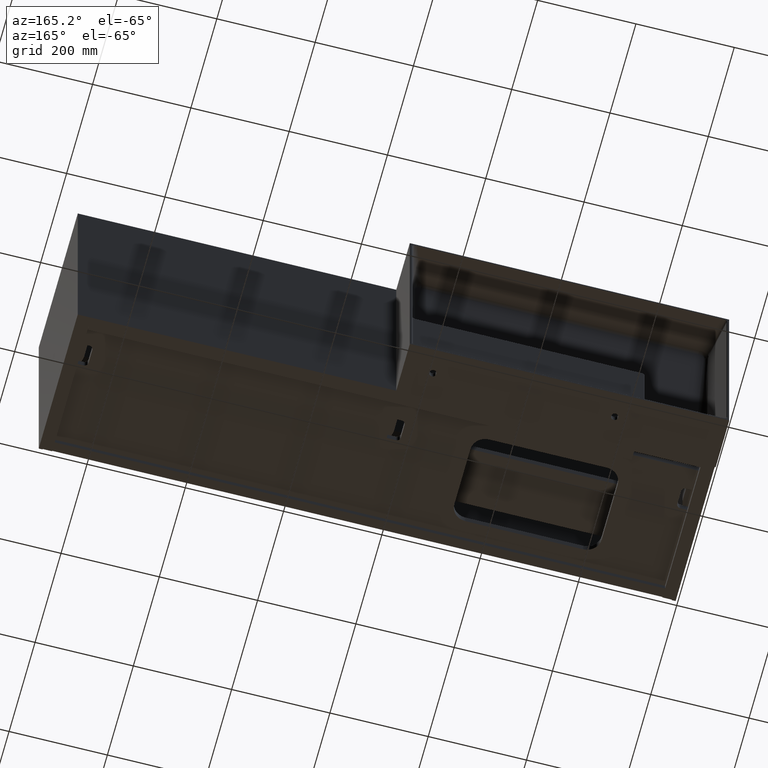
[diagram: clean part render]
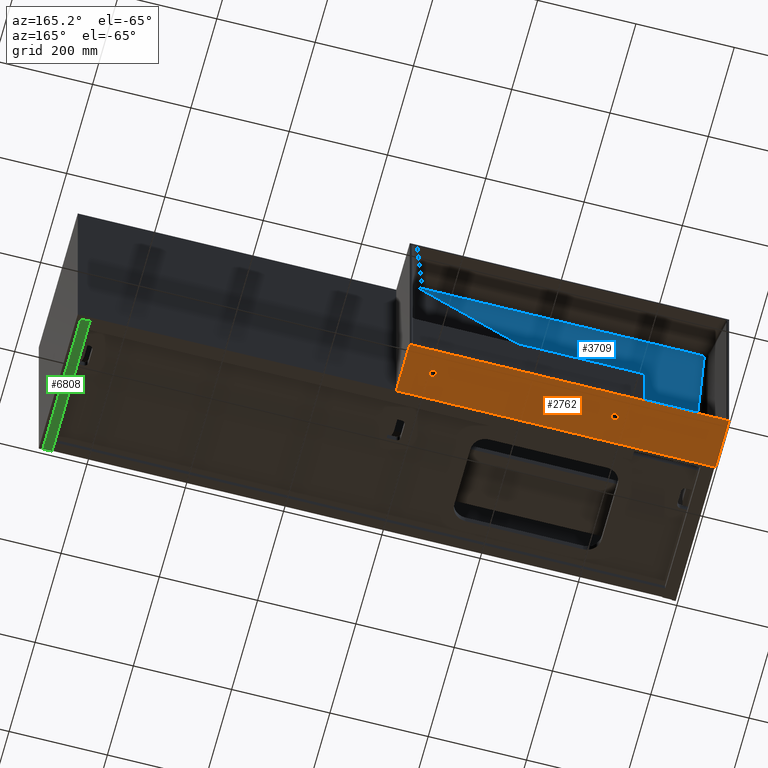
[diagram: same view with three faces highlighted in distinct colors, each labeled with its STEP entity id]
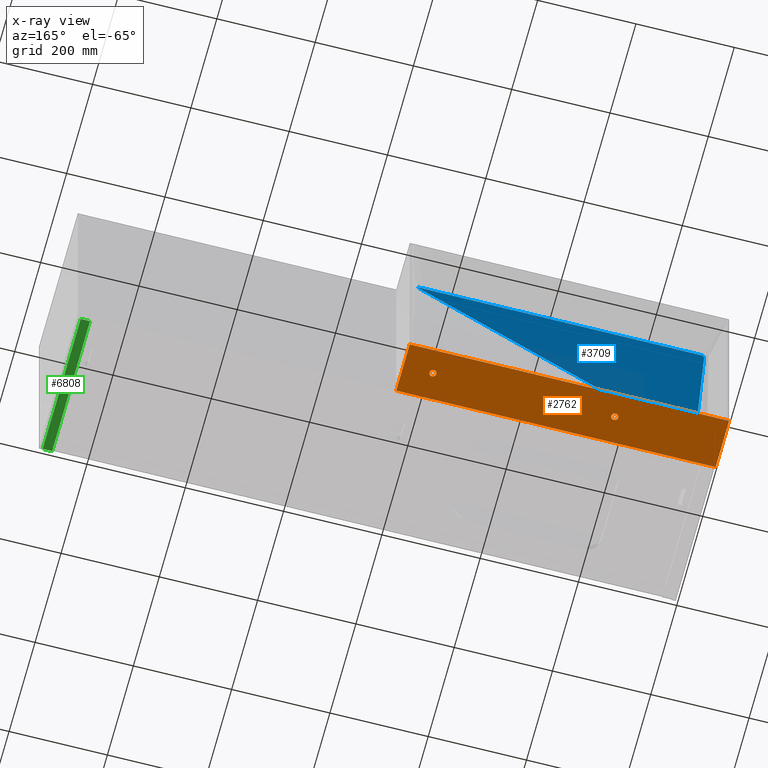
[diagram: x-ray of the same camera — body ghosted, the three highlighted faces saturated]
A machine part, auxiliary view with three faces highlighted in distinct colors.
The next image is the same camera in x-ray (body ghosted, the three faces saturated) — at least one of them is partly hidden behind the body in this view.
Their STEP definitions:

[orange] entity #2762 — the highlighted planar face has unit normal (0, 0, 1).
#271 = ORIENTED_EDGE ( 'NONE', *, *, #6829, .T. ) ;
#370 = VERTEX_POINT ( 'NONE', #12375 ) ;
#525 = CARTESIAN_POINT ( 'NONE',  ( 227.0000000000000284, 355.0000000000000568, -470.0000000000037517 ) ) ;
#697 = ORIENTED_EDGE ( 'NONE', *, *, #5405, .F. ) ;
#937 = DIRECTION ( 'NONE',  ( -1.000000000000000000, 0.0000000000000000000, 0.0000000000000000000 ) ) ;
#1280 = CIRCLE ( 'NONE', #10441, 7.000000000000006217 ) ;
#1524 = DIRECTION ( 'NONE',  ( 0.0000000000000000000, 0.0000000000000000000, -1.000000000000000000 ) ) ;
#1601 = CARTESIAN_POINT ( 'NONE',  ( 5.551115123125782702E-14, 300.0000000000000000, -470.0000000000037517 ) ) ;
#1631 = VERTEX_POINT ( 'NONE', #5678 ) ;
#1723 = CARTESIAN_POINT ( 'NONE',  ( 220.0000000000000284, 355.0000000000000568, -470.0000000000037517 ) ) ;
#1744 = CARTESIAN_POINT ( 'NONE',  ( 5.551115123125782702E-14, 404.9999999999999432, -470.0000000000037517 ) ) ;
#2352 = DIRECTION ( 'NONE',  ( 1.000000000000000000, -0.0000000000000000000, -0.0000000000000000000 ) ) ;
#2499 = CARTESIAN_POINT ( 'NONE',  ( 649.9999999999998863, 404.9999999999999432, -470.0000000000037517 ) ) ;
#2762 = ADVANCED_FACE ( 'NONE', ( #14158, #2975, #7990 ), #12944, .F. ) ;
#2788 = VERTEX_POINT ( 'NONE', #525 ) ;
#2943 = EDGE_CURVE ( 'NONE', #5999, #10272, #8592, .T. ) ;
#2975 = FACE_BOUND ( 'NONE', #6657, .T. ) ;
#3949 = CARTESIAN_POINT ( 'NONE',  ( 583.0000000000001137, 355.0000000000000568, -470.0000000000037517 ) ) ;
#4264 = CARTESIAN_POINT ( 'NONE',  ( 5.551115123125782702E-14, 403.9999999999999432, -470.0000000000037517 ) ) ;
#4393 = AXIS2_PLACEMENT_3D ( 'NONE', #1744, #6750, #11725 ) ;
#4500 = ORIENTED_EDGE ( 'NONE', *, *, #9471, .F. ) ;
#4640 = LINE ( 'NONE', #9655, #10582 ) ;
#5093 = VERTEX_POINT ( 'NONE', #14787 ) ;
#5405 = EDGE_CURVE ( 'NONE', #11023, #12957, #1280, .T. ) ;
#5474 = CARTESIAN_POINT ( 'NONE',  ( 220.0000000000000284, 355.0000000000000568, -470.0000000000037517 ) ) ;
#5678 = CARTESIAN_POINT ( 'NONE',  ( 5.551115123125782702E-14, 300.0000000000000000, -470.0000000000037517 ) ) ;
#5741 = VECTOR ( 'NONE', #7502, 1000.000000000000000 ) ;
#5785 = AXIS2_PLACEMENT_3D ( 'NONE', #1723, #6730, #11705 ) ;
#5999 = VERTEX_POINT ( 'NONE', #4264 ) ;
#6469 = EDGE_LOOP ( 'NONE', ( #14882, #10188, #271, #13599 ) ) ;
#6525 = DIRECTION ( 'NONE',  ( -1.000000000000000000, 0.0000000000000000000, 0.0000000000000000000 ) ) ;
#6605 = DIRECTION ( 'NONE',  ( -1.000000000000000000, -0.0000000000000000000, -0.0000000000000000000 ) ) ;
#6657 = EDGE_LOOP ( 'NONE', ( #10676, #4500 ) ) ;
#6730 = DIRECTION ( 'NONE',  ( 0.0000000000000000000, 0.0000000000000000000, -1.000000000000000000 ) ) ;
#6750 = DIRECTION ( 'NONE',  ( 0.0000000000000000000, 0.0000000000000000000, 1.000000000000000000 ) ) ;
#6829 = EDGE_CURVE ( 'NONE', #10272, #5093, #13703, .T. ) ;
#7151 = CARTESIAN_POINT ( 'NONE',  ( 590.0000000000001137, 355.0000000000000568, -470.0000000000037517 ) ) ;
#7502 = DIRECTION ( 'NONE',  ( -0.0000000000000000000, -1.000000000000000000, -0.0000000000000000000 ) ) ;
#7696 = AXIS2_PLACEMENT_3D ( 'NONE', #12726, #1524, #6525 ) ;
#7990 = FACE_OUTER_BOUND ( 'NONE', #6469, .T. ) ;
#8115 = EDGE_LOOP ( 'NONE', ( #15660, #697 ) ) ;
#8411 = AXIS2_PLACEMENT_3D ( 'NONE', #5474, #10472, #15427 ) ;
#8592 = LINE ( 'NONE', #13550, #15369 ) ;
#9471 = EDGE_CURVE ( 'NONE', #2788, #370, #12835, .T. ) ;
#9655 = CARTESIAN_POINT ( 'NONE',  ( 5.551115123125782702E-14, 404.9999999999999432, -470.0000000000037517 ) ) ;
#9720 = EDGE_CURVE ( 'NONE', #370, #2788, #15437, .T. ) ;
#10188 = ORIENTED_EDGE ( 'NONE', *, *, #2943, .T. ) ;
#10272 = VERTEX_POINT ( 'NONE', #16138 ) ;
#10441 = AXIS2_PLACEMENT_3D ( 'NONE', #7151, #12121, #937 ) ;
#10472 = DIRECTION ( 'NONE',  ( 0.0000000000000000000, 0.0000000000000000000, -1.000000000000000000 ) ) ;
#10582 = VECTOR ( 'NONE', #14596, 1000.000000000000000 ) ;
#10676 = ORIENTED_EDGE ( 'NONE', *, *, #9720, .F. ) ;
#11023 = VERTEX_POINT ( 'NONE', #13583 ) ;
#11705 = DIRECTION ( 'NONE',  ( -1.000000000000000000, 0.0000000000000000000, 0.0000000000000000000 ) ) ;
#11725 = DIRECTION ( 'NONE',  ( 1.000000000000000000, 0.0000000000000000000, -0.0000000000000000000 ) ) ;
#12121 = DIRECTION ( 'NONE',  ( 0.0000000000000000000, 0.0000000000000000000, -1.000000000000000000 ) ) ;
#12375 = CARTESIAN_POINT ( 'NONE',  ( 213.0000000000000284, 355.0000000000000568, -470.0000000000037517 ) ) ;
#12726 = CARTESIAN_POINT ( 'NONE',  ( 590.0000000000001137, 355.0000000000000568, -470.0000000000037517 ) ) ;
#12803 = LINE ( 'NONE', #1601, #13941 ) ;
#12835 = CIRCLE ( 'NONE', #5785, 7.000000000000006217 ) ;
#12944 = PLANE ( 'NONE',  #4393 ) ;
#12957 = VERTEX_POINT ( 'NONE', #3949 ) ;
#13408 = EDGE_CURVE ( 'NONE', #12957, #11023, #14709, .T. ) ;
#13481 = EDGE_CURVE ( 'NONE', #5093, #1631, #12803, .T. ) ;
#13550 = CARTESIAN_POINT ( 'NONE',  ( 5.551115123125782702E-14, 403.9999999999999432, -470.0000000000037517 ) ) ;
#13583 = CARTESIAN_POINT ( 'NONE',  ( 597.0000000000001137, 355.0000000000000568, -470.0000000000037517 ) ) ;
#13599 = ORIENTED_EDGE ( 'NONE', *, *, #13481, .T. ) ;
#13703 = LINE ( 'NONE', #2499, #5741 ) ;
#13941 = VECTOR ( 'NONE', #6605, 1000.000000000000000 ) ;
#14116 = EDGE_CURVE ( 'NONE', #5999, #1631, #4640, .T. ) ;
#14158 = FACE_BOUND ( 'NONE', #8115, .T. ) ;
#14596 = DIRECTION ( 'NONE',  ( -0.0000000000000000000, -1.000000000000000000, -0.0000000000000000000 ) ) ;
#14709 = CIRCLE ( 'NONE', #7696, 7.000000000000006217 ) ;
#14787 = CARTESIAN_POINT ( 'NONE',  ( 649.9999999999998863, 300.0000000000000000, -470.0000000000037517 ) ) ;
#14882 = ORIENTED_EDGE ( 'NONE', *, *, #14116, .F. ) ;
#15369 = VECTOR ( 'NONE', #2352, 1000.000000000000000 ) ;
#15427 = DIRECTION ( 'NONE',  ( -1.000000000000000000, 0.0000000000000000000, 0.0000000000000000000 ) ) ;
#15437 = CIRCLE ( 'NONE', #8411, 7.000000000000006217 ) ;
#15660 = ORIENTED_EDGE ( 'NONE', *, *, #13408, .F. ) ;
#16138 = CARTESIAN_POINT ( 'NONE',  ( 649.9999999999998863, 403.9999999999999432, -470.0000000000037517 ) ) ;

[blue] entity #3709 — the highlighted planar face has unit normal (0, 0.9989, -0.0471).
#28 = CARTESIAN_POINT ( 'NONE',  ( 33.47409499779467268, 329.6497692400749315, -32.53051000154606953 ) ) ;
#112 = CARTESIAN_POINT ( 'NONE',  ( 38.95957256948105396, 329.7210452700792871, -31.01753936451388327 ) ) ;
#166 = CARTESIAN_POINT ( 'NONE',  ( 193.7021115397278095, 316.7503751772958935, -306.3449249084059147 ) ) ;
#168 = CARTESIAN_POINT ( 'NONE',  ( 610.9881485329339057, 329.7211485507809243, -31.01534703324844955 ) ) ;
#195 = CARTESIAN_POINT ( 'NONE',  ( 153.3386852661366220, 315.7115601592879557, -328.3957689223072407 ) ) ;
#274 = AXIS2_PLACEMENT_3D ( 'NONE', #3890, #8896, #13847 ) ;
#400 = CARTESIAN_POINT ( 'NONE',  ( 151.9093494116073941, 315.4650869982647805, -333.6276351671397151 ) ) ;
#470 = CARTESIAN_POINT ( 'NONE',  ( 166.8388415159419083, 316.5339860282848008, -310.9382002157748843 ) ) ;
#482 = CARTESIAN_POINT ( 'NONE',  ( 60.94268838823946055, 314.9991196170648777, -343.5186878187569164 ) ) ;
#548 = CARTESIAN_POINT ( 'NONE',  ( 156.5240488746706546, 316.1005293085398762, -320.1391516346374146 ) ) ;
#568 = CARTESIAN_POINT ( 'NONE',  ( 60.90663676467716670, 314.9999518831746173, -343.5010213720403272 ) ) ;
#691 = DIRECTION ( 'NONE',  ( -1.000000000000000000, 0.0000000000000000000, 0.0000000000000000000 ) ) ;
#738 = ORIENTED_EDGE ( 'NONE', *, *, #1916, .T. ) ;
#743 = CARTESIAN_POINT ( 'NONE',  ( 136.1195970704763738, 314.9999859263438680, -343.5002987403862562 ) ) ;
#760 = CARTESIAN_POINT ( 'NONE',  ( 947.2733949437903220, 315.0000000000000000, -343.5000000000036948 ) ) ;
#801 = VERTEX_POINT ( 'NONE', #1301 ) ;
#829 = CARTESIAN_POINT ( 'NONE',  ( 136.0778652050269670, 314.9991196170648777, -343.5186878187569164 ) ) ;
#857 = ORIENTED_EDGE ( 'NONE', *, *, #13500, .T. ) ;
#987 = CARTESIAN_POINT ( 'NONE',  ( 136.1333824222509747, 315.0000000000000000, -343.5000000000036948 ) ) ;
#1160 = CARTESIAN_POINT ( 'NONE',  ( 31.46718212441213680, 329.3357435706770389, -39.19630798503847302 ) ) ;
#1241 = CARTESIAN_POINT ( 'NONE',  ( 32.93843571188597252, 329.6205960802619757, -33.14976635159989371 ) ) ;
#1301 = CARTESIAN_POINT ( 'NONE',  ( 199.3272960926469750, 316.8349497930412326, -304.5496662463578446 ) ) ;
#1323 = CARTESIAN_POINT ( 'NONE',  ( 37.06089926897184483, 329.7108201647723149, -31.23458686405955476 ) ) ;
#1347 = CARTESIAN_POINT ( 'NONE',  ( 65.01027679663329195, 315.0448930965660566, -342.5470577990144534 ) ) ;
#1365 = CARTESIAN_POINT ( 'NONE',  ( 614.5277192395964221, 329.6790194979284934, -31.90961709750361663 ) ) ;
#1373 = CARTESIAN_POINT ( 'NONE',  ( 195.8048643806832843, 316.7731144977071267, -305.8622391571570347 ) ) ;
#1376 = CARTESIAN_POINT ( 'NONE',  ( 610.9801094671161081, 329.7211740171513270, -31.01480646062488589 ) ) ;
#1401 = CARTESIAN_POINT ( 'NONE',  ( 41.44946198263794912, 329.7249613013299836, -30.93441407968062506 ) ) ;
#1459 = CARTESIAN_POINT ( 'NONE',  ( 614.5277192395964221, 329.6790194979284934, -31.90961709750361663 ) ) ;
#1565 = VERTEX_POINT ( 'NONE', #8479 ) ;
#1592 = CARTESIAN_POINT ( 'NONE',  ( 136.0778652050269670, 314.9991196170648777, -343.5186878187569164 ) ) ;
#1606 = CARTESIAN_POINT ( 'NONE',  ( 152.6018373482063168, 315.5696781237313076, -331.4074876404616816 ) ) ;
#1686 = CARTESIAN_POINT ( 'NONE',  ( 167.7033499628448681, 316.5512903870404671, -310.5708819646253005 ) ) ;
#1704 = ORIENTED_EDGE ( 'NONE', *, *, #11427, .T. ) ;
#1747 = ORIENTED_EDGE ( 'NONE', *, *, #13307, .T. ) ;
#1763 = CARTESIAN_POINT ( 'NONE',  ( 157.1944950747823100, 316.1510661865220868, -319.0664093330550486 ) ) ;
#1780 = CARTESIAN_POINT ( 'NONE',  ( 60.92751258604889131, 314.9997182540301424, -343.5059805993639657 ) ) ;
#1787 = VERTEX_POINT ( 'NONE', #195 ) ;
#1895 = VERTEX_POINT ( 'NONE', #3113 ) ;
#1916 = EDGE_CURVE ( 'NONE', #15447, #12259, #8356, .T. ) ;
#2016 = VERTEX_POINT ( 'NONE', #2531 ) ;
#2038 = CARTESIAN_POINT ( 'NONE',  ( 136.0789525232674464, 314.9992087463477333, -343.5167958785367546 ) ) ;
#2093 = DIRECTION ( 'NONE',  ( -0.8356163984689579660, 0.02584948056443482980, 0.5487048741940574459 ) ) ;
#2115 = DIRECTION ( 'NONE',  ( -0.8356163984689591873, -0.02584948056443473960, -0.5487048741940557806 ) ) ;
#2370 = CARTESIAN_POINT ( 'NONE',  ( 31.45480434768563427, 329.3101918600737008, -39.73869211988137806 ) ) ;
#2390 = ORIENTED_EDGE ( 'NONE', *, *, #3312, .T. ) ;
#2461 = CARTESIAN_POINT ( 'NONE',  ( 32.06997352171011073, 329.5429848699277500, -34.79721335914243241 ) ) ;
#2531 = CARTESIAN_POINT ( 'NONE',  ( 31.45806411650226053, 329.1756495435058127, -42.59461120506608012 ) ) ;
#2545 = CARTESIAN_POINT ( 'NONE',  ( 37.01503836490485355, 329.7104568430672202, -31.24229906508113430 ) ) ;
#2585 = CARTESIAN_POINT ( 'NONE',  ( 614.6864471200190110, 329.6858300883328070, -31.76504923504048961 ) ) ;
#2593 = CARTESIAN_POINT ( 'NONE',  ( 198.1148904920754035, 316.8069209751066637, -305.1446317421006142 ) ) ;
#2597 = CARTESIAN_POINT ( 'NONE',  ( 610.9020607668500134, 329.7214135855660970, -31.00972116087900332 ) ) ;
#2626 = CARTESIAN_POINT ( 'NONE',  ( 39.85010461055465925, 329.7232117706648182, -30.97155122837912344 ) ) ;
#2676 = CARTESIAN_POINT ( 'NONE',  ( 178.2644837121265766, 316.6443237527140582, -308.5960700885902384 ) ) ;
#2703 = CARTESIAN_POINT ( 'NONE',  ( 31.45806411650226053, 329.1756495435058127, -42.59461120506608012 ) ) ;
#2832 = CARTESIAN_POINT ( 'NONE',  ( 153.3386852661366220, 315.7115601592879557, -328.3957689223072407 ) ) ;
#2908 = CARTESIAN_POINT ( 'NONE',  ( 172.6972624792437330, 316.6167240759052106, -309.1819262396892896 ) ) ;
#2913 = CARTESIAN_POINT ( 'NONE',  ( 150.2991523776126712, 315.3203450831405235, -336.7000603221023880 ) ) ;
#2957 = CARTESIAN_POINT ( 'NONE',  ( 149.9914699862140424, 315.3087644759445425, -336.9458809527590120 ) ) ;
#2995 = CARTESIAN_POINT ( 'NONE',  ( 160.5572078355071994, 316.3373967013740184, -315.1111862694636443 ) ) ;
#3016 = CARTESIAN_POINT ( 'NONE',  ( 60.93713938520778584, 314.9994480009252129, -343.5117172405922474 ) ) ;
#3057 = EDGE_LOOP ( 'NONE', ( #15726, #10325, #8371, #9491, #2390, #7797, #15145, #6490, #6241, #15066, #8626, #1704, #1747, #12537, #5336, #857, #5330, #738 ) ) ;
#3113 = CARTESIAN_POINT ( 'NONE',  ( 132.0102767966331783, 315.0448930965660566, -342.5470577990145102 ) ) ;
#3280 = CARTESIAN_POINT ( 'NONE',  ( 136.0843081215926702, 314.9994828154415814, -343.5109782356149708 ) ) ;
#3312 = EDGE_CURVE ( 'NONE', #4070, #11586, #10501, .T. ) ;
#3339 = CARTESIAN_POINT ( 'NONE',  ( 607.2514038758654351, 329.7249613011944689, -30.93441408255420555 ) ) ;
#3604 = CARTESIAN_POINT ( 'NONE',  ( 31.45352180081113147, 329.3073872791450754, -39.79822473686244422 ) ) ;
#3690 = CARTESIAN_POINT ( 'NONE',  ( 31.65792970682448271, 329.4418998912123584, -36.94293618675494884 ) ) ;
#3709 = ADVANCED_FACE ( 'NONE', ( #10121 ), #15074, .T. ) ;
#3740 = B_SPLINE_CURVE_WITH_KNOTS ( 'NONE', 3,
 ( #6066, #11059, #16016, #4837, #9853, #14796, #3604, #8610, #13570, #2370, #7380, #12351, #1160, #6153, #11144, #16092, #4911, #9926, #14876, #3690, #8701, #13658, #2461, #7470, #12439, #1241, #6236, #11223, #28, #4997, #10011, #14968, #3782, #8790, #13743, #2545, #7546, #12519, #1323, #6321, #11308, #112, #5089, #10097, #15050, #3863, #8869, #13817, #2626, #7630, #12599, #1401, #6408 ),
 .UNSPECIFIED., .F., .F.,
 ( 4, 1, 1, 1, 1, 1, 1, 1, 2, 2, 1, 1, 1, 1, 1, 2, 2, 1, 1, 1, 2, 2, 1, 1, 1, 1, 1, 1, 1, 2, 2, 1, 1, 1, 1, 1, 1, 1, 2, 2, 4 ),
 ( 0.0000000000000000000, 0.06249999999990177302, 0.09374999999985265953, 0.1093749999998281097, 0.1171874999998152311, 0.1210937499998094302, 0.1230468749998067796, 0.1240234374998054612, 0.1245117187498054750, 0.1249999999998055167, 0.1874999999998187838, 0.2187499999998252509, 0.2343749999998286648, 0.2421874999998305245, 0.2460937499998309408, 0.2480468749998311073, 0.2499999999998312461, 0.3749999999998253064, 0.4374999999998233080, 0.4687499999998223643, 0.4843749999998218092, 0.4999999999998213651, 0.6249999999998214761, 0.6874999999998213651, 0.7187499999998212541, 0.7343749999998209210, 0.7421874999998213651, 0.7460937499998219202, 0.7480468749998228084, 0.7490234374998235856, 0.7499999999998243627, 0.8124999999998844258, 0.8437499999999145128, 0.8593749999999295008, 0.8671874999999369393, 0.8710937499999407141, 0.8730468749999429345, 0.8740234374999440448, 0.8745117187499445999, 0.8749999999999451550, 1.000000000000000000 ),
 .UNSPECIFIED. ) ;
#3774 = VECTOR ( 'NONE', #6346, 1000.000000000000000 ) ;
#3782 = CARTESIAN_POINT ( 'NONE',  ( 36.65727016811580796, 329.7074284779456548, -31.30658193138358669 ) ) ;
#3833 = CARTESIAN_POINT ( 'NONE',  ( 199.0965661181188580, 316.8278122476280032, -304.7011743568715474 ) ) ;
#3837 = CARTESIAN_POINT ( 'NONE',  ( 610.1935001160478578, 329.7230900881705224, -30.97413417303484096 ) ) ;
#3863 = CARTESIAN_POINT ( 'NONE',  ( 39.80055001793400749, 329.7231184733857390, -30.97353164232419331 ) ) ;
#3869 = CARTESIAN_POINT ( 'NONE',  ( 65.01027679663329195, 315.0448930965660566, -342.5470577990144534 ) ) ;
#3890 = CARTESIAN_POINT ( 'NONE',  ( 947.2733949437903220, 315.0000000000000000, -343.5000000000036948 ) ) ;
#3911 = CARTESIAN_POINT ( 'NONE',  ( 187.8723330342562292, 316.7024201626882700, -307.3628622008610591 ) ) ;
#3941 = CARTESIAN_POINT ( 'NONE',  ( 43.46481122973927569, 315.8787817905590032, -324.8461686152393213 ) ) ;
#4070 = VERTEX_POINT ( 'NONE', #3869 ) ;
#4153 = CARTESIAN_POINT ( 'NONE',  ( 150.9887181297819154, 315.3646822769986784, -335.7589182238220360 ) ) ;
#4217 = VERTEX_POINT ( 'NONE', #4743 ) ;
#4231 = CARTESIAN_POINT ( 'NONE',  ( 161.2636818977418329, 316.3676109992984493, -314.4698297632776871 ) ) ;
#4252 = CARTESIAN_POINT ( 'NONE',  ( 60.94268838823946055, 314.9991196170648777, -343.5186878187569164 ) ) ;
#4310 = CARTESIAN_POINT ( 'NONE',  ( 153.3386852661366220, 315.7115601592879557, -328.3957689223072407 ) ) ;
#4505 = CARTESIAN_POINT ( 'NONE',  ( 136.0926246450356984, 314.9997099876720767, -343.5061560686908706 ) ) ;
#4574 = CARTESIAN_POINT ( 'NONE',  ( 604.9648938005113905, 329.7249613011944689, -30.93441408255420555 ) ) ;
#4653 = VERTEX_POINT ( 'NONE', #1592 ) ;
#4654 = B_SPLINE_CURVE_WITH_KNOTS ( 'NONE', 3,
 ( #5058, #10072, #15026, #3837, #8844, #13790, #2597, #7602, #12573, #1376, #6380, #11373, #168, #5144, #10147, #15100 ),
 .UNSPECIFIED., .F., .F.,
 ( 4, 1, 1, 1, 1, 1, 1, 1, 1, 2, 2, 4 ),
 ( 0.0000000000000000000, 0.2499999999947719598, 0.3749999999921356797, 0.4374999999908175119, 0.4687499999901583725, 0.4843749999898610548, 0.4921874999897125069, 0.4960937499896722058, 0.4980468749896863057, 0.4990234374897277170, 0.4999999999897691838, 1.000000000000000000 ),
 .UNSPECIFIED. ) ;
#4743 = CARTESIAN_POINT ( 'NONE',  ( 42.74859612466869407, 329.7249613011944689, -30.93441408255406699 ) ) ;
#4757 = DIRECTION ( 'NONE',  ( -0.8356163984689591873, -0.02584948056443473960, -0.5487048741940557806 ) ) ;
#4798 = CARTESIAN_POINT ( 'NONE',  ( 63.59036508422332190, 315.0448930965660566, -342.5470577990144534 ) ) ;
#4837 = CARTESIAN_POINT ( 'NONE',  ( 31.44591276394434587, 329.2815417044280935, -40.34684670194455691 ) ) ;
#4851 = CARTESIAN_POINT ( 'NONE',  ( 133.4301885090430915, 315.0448930965660566, -342.5470577990143966 ) ) ;
#4911 = CARTESIAN_POINT ( 'NONE',  ( 31.63728168368350779, 329.4346731892463254, -37.09633681633806646 ) ) ;
#4997 = CARTESIAN_POINT ( 'NONE',  ( 34.24124650120866420, 329.6743000383533513, -32.00979669167229247 ) ) ;
#5058 = CARTESIAN_POINT ( 'NONE',  ( 607.2514038758654351, 329.7249613011944689, -30.93441408255420555 ) ) ;
#5089 = CARTESIAN_POINT ( 'NONE',  ( 39.40191773380524864, 329.7222547075044190, -30.99186673219122312 ) ) ;
#5141 = CARTESIAN_POINT ( 'NONE',  ( 192.1184905281108115, 316.7354091234109319, -306.6626081474803414 ) ) ;
#5144 = CARTESIAN_POINT ( 'NONE',  ( 612.4860492557529597, 329.7163766206675746, -31.11664041537338932 ) ) ;
#5166 = CARTESIAN_POINT ( 'NONE',  ( 140.0102767966332351, 315.0000000000000000, -343.5000000000036380 ) ) ;
#5330 = ORIENTED_EDGE ( 'NONE', *, *, #14301, .T. ) ;
#5336 = ORIENTED_EDGE ( 'NONE', *, *, #15982, .T. ) ;
#5382 = CARTESIAN_POINT ( 'NONE',  ( 151.6379731480173518, 315.4309747735021006, -334.3517326572305706 ) ) ;
#5452 = CARTESIAN_POINT ( 'NONE',  ( 165.5328698598231654, 316.5060946015510126, -311.5302493193883606 ) ) ;
#5487 = B_SPLINE_CURVE_WITH_KNOTS ( 'NONE', 3,
 ( #14103, #2908, #7924, #12884, #1686, #6698, #11672, #470, #5452, #10449, #15406, #4231, #9236, #14179, #2995, #8008, #12961, #1763, #6769, #11745, #548, #5538, #10532, #15486, #4310 ),
 .UNSPECIFIED., .F., .F.,
 ( 4, 1, 1, 1, 2, 2, 1, 1, 1, 2, 2, 1, 2, 2, 1, 1, 4 ),
 ( 0.0000000000000000000, 0.1249999999999944489, 0.1874999999999909239, 0.2187499999999904521, 0.2343749999999902300, 0.2499999999999900080, 0.3749999999999945599, 0.4374999999999941713, 0.4687499999999923395, 0.4843749999999895084, 0.4999999999999866773, 0.6249999999999777955, 0.6874999999999755751, 0.7031249999999754641, 0.7187499999999752420, 0.7499999999999747979, 1.000000000000000000 ),
 .UNSPECIFIED. ) ;
#5538 = CARTESIAN_POINT ( 'NONE',  ( 156.2948952270304801, 316.0823271635744049, -320.5255271224711464 ) ) ;
#5558 = CARTESIAN_POINT ( 'NONE',  ( 60.90018315897712142, 314.9999873542471960, -343.5002684303938167 ) ) ;
#5734 = CARTESIAN_POINT ( 'NONE',  ( 136.1127695007438092, 314.9999453202847803, -343.5011606819819008 ) ) ;
#5753 = DIRECTION ( 'NONE',  ( -1.000000000000000000, 0.0000000000000000000, 0.0000000000000000000 ) ) ;
#5799 = CARTESIAN_POINT ( 'NONE',  ( 42.74859612466869407, 329.7249613011944689, -30.93441408255406699 ) ) ;
#5814 = CARTESIAN_POINT ( 'NONE',  ( 614.7307329588622906, 329.6904979936178961, -31.66596397969709287 ) ) ;
#5836 = VECTOR ( 'NONE', #4757, 1000.000000000000114 ) ;
#5858 = VECTOR ( 'NONE', #2115, 1000.000000000000114 ) ;
#6066 = CARTESIAN_POINT ( 'NONE',  ( 31.45806411650226053, 329.1756495435058127, -42.59461120506608012 ) ) ;
#6153 = CARTESIAN_POINT ( 'NONE',  ( 31.50210393800605857, 329.3711174868012108, -38.44542867246135387 ) ) ;
#6236 = CARTESIAN_POINT ( 'NONE',  ( 33.02323264398262381, 329.6256754766356494, -33.04194640754992918 ) ) ;
#6241 = ORIENTED_EDGE ( 'NONE', *, *, #8649, .T. ) ;
#6321 = CARTESIAN_POINT ( 'NONE',  ( 37.46782869017114592, 329.7140127720062992, -31.16681764346372674 ) ) ;
#6346 = DIRECTION ( 'NONE',  ( -1.000000000000000000, 9.757946722184971901E-18, 2.071311613106639097E-16 ) ) ;
#6376 = CARTESIAN_POINT ( 'NONE',  ( 195.2801291537134887, 316.7670150134594564, -305.9917124256194825 ) ) ;
#6380 = CARTESIAN_POINT ( 'NONE',  ( 610.9848112725184137, 329.7211591309977052, -31.01512244782692562 ) ) ;
#6403 = CARTESIAN_POINT ( 'NONE',  ( 43.58903264293878266, 315.4151811651100843, -334.6869823302048417 ) ) ;
#6408 = CARTESIAN_POINT ( 'NONE',  ( 42.74859612466869407, 329.7249613011944689, -30.93441408255406699 ) ) ;
#6452 = B_SPLINE_CURVE_WITH_KNOTS ( 'NONE', 3,
 ( #2832, #7846, #12808, #1606, #6612, #11594, #400, #5382, #10381, #15332, #4153, #9159, #14109, #2913, #7930, #12890 ),
 .UNSPECIFIED., .F., .F.,
 ( 4, 2, 2, 2, 2, 2, 2, 4 ),
 ( 0.0000000000000000000, 0.002327619205670144499, 0.004655238411340288998, 0.005819048014175373824, 0.006982857617010459518, 0.008146667219845542610, 0.008728572021263016067, 0.009310476822680489525 ),
 .UNSPECIFIED. ) ;
#6490 = ORIENTED_EDGE ( 'NONE', *, *, #14096, .T. ) ;
#6612 = CARTESIAN_POINT ( 'NONE',  ( 152.3914831439639670, 315.5344834360791424, -332.1545624844790154 ) ) ;
#6698 = CARTESIAN_POINT ( 'NONE',  ( 167.2690301863730724, 316.5427596381475723, -310.7519634949263718 ) ) ;
#6769 = CARTESIAN_POINT ( 'NONE',  ( 156.7658629624832543, 316.1191833721571811, -319.7431833054165509 ) ) ;
#6787 = CARTESIAN_POINT ( 'NONE',  ( 60.92090942391381958, 314.9998476346298730, -343.5032342476329745 ) ) ;
#6912 = LINE ( 'NONE', #11882, #14172 ) ;
#6969 = CARTESIAN_POINT ( 'NONE',  ( 136.1333824222509747, 315.0000000000000000, -343.5000000000036948 ) ) ;
#7044 = CARTESIAN_POINT ( 'NONE',  ( 136.0785585320843438, 314.9991799397764112, -343.5174073533425485 ) ) ;
#7380 = CARTESIAN_POINT ( 'NONE',  ( 31.45491453958063133, 329.3104221738174147, -39.73380326830408649 ) ) ;
#7470 = CARTESIAN_POINT ( 'NONE',  ( 32.54148105634145338, 329.5921791447717055, -33.75297038791546100 ) ) ;
#7546 = CARTESIAN_POINT ( 'NONE',  ( 37.03734899239336897, 329.7106341431926921, -31.23853552938001243 ) ) ;
#7590 = CARTESIAN_POINT ( 'NONE',  ( 614.6151535243388935, 329.6820198651378178, -31.84592854066736223 ) ) ;
#7597 = CARTESIAN_POINT ( 'NONE',  ( 197.3579698442219978, 316.7939460989400118, -305.4200484096402306 ) ) ;
#7602 = CARTESIAN_POINT ( 'NONE',  ( 610.9469463202290171, 329.7212775058078478, -31.01260971512106579 ) ) ;
#7630 = CARTESIAN_POINT ( 'NONE',  ( 39.85592793073852391, 329.7232225338041758, -30.97132276007133456 ) ) ;
#7685 = CARTESIAN_POINT ( 'NONE',  ( 176.1234516139296886, 316.6333546551160794, -308.8289102535058532 ) ) ;
#7797 = ORIENTED_EDGE ( 'NONE', *, *, #9736, .T. ) ;
#7846 = CARTESIAN_POINT ( 'NONE',  ( 153.1702101777404437, 315.6758977246931863, -329.1527725935813464 ) ) ;
#7924 = CARTESIAN_POINT ( 'NONE',  ( 170.8233128626984012, 316.6005407954646671, -309.5254474503406641 ) ) ;
#7930 = CARTESIAN_POINT ( 'NONE',  ( 150.1562415174113028, 315.3138616215978800, -336.8376842461577212 ) ) ;
#8008 = CARTESIAN_POINT ( 'NONE',  ( 159.5328454346341971, 316.2914215586545765, -316.0870969783485975 ) ) ;
#8027 = CARTESIAN_POINT ( 'NONE',  ( 60.93431185951090612, 314.9995629513521749, -343.5092771969937644 ) ) ;
#8131 = EDGE_CURVE ( 'NONE', #4653, #1895, #10497, .T. ) ;
#8282 = CARTESIAN_POINT ( 'NONE',  ( 136.0822418297967715, 314.9994056883926987, -343.5126154053662049 ) ) ;
#8334 = LINE ( 'NONE', #13297, #8487 ) ;
#8356 = LINE ( 'NONE', #13320, #5858 ) ;
#8371 = ORIENTED_EDGE ( 'NONE', *, *, #8131, .T. ) ;
#8479 = CARTESIAN_POINT ( 'NONE',  ( 173.9812721945681062, 316.6229568114036965, -309.0496244574906086 ) ) ;
#8487 = VECTOR ( 'NONE', #2093, 1000.000000000000114 ) ;
#8610 = CARTESIAN_POINT ( 'NONE',  ( 31.45426059541438235, 329.3090328919622038, -39.76329344408150490 ) ) ;
#8626 = ORIENTED_EDGE ( 'NONE', *, *, #8842, .T. ) ;
#8649 = EDGE_CURVE ( 'NONE', #10856, #2016, #14464, .T. ) ;
#8701 = CARTESIAN_POINT ( 'NONE',  ( 31.65942971531341499, 329.4424095261252887, -36.93211820686678948 ) ) ;
#8790 = CARTESIAN_POINT ( 'NONE',  ( 36.86019171625576263, 329.7091892495750471, -31.26920617162613780 ) ) ;
#8829 = CARTESIAN_POINT ( 'NONE',  ( 614.7307329588622906, 329.6904979936178961, -31.66596397969709287 ) ) ;
#8841 = CARTESIAN_POINT ( 'NONE',  ( 198.8552613548531269, 316.8220531439237106, -304.8234223945301551 ) ) ;
#8842 = EDGE_CURVE ( 'NONE', #4217, #13241, #9247, .T. ) ;
#8844 = CARTESIAN_POINT ( 'NONE',  ( 610.6167148658778387, 329.7221843413141187, -30.99336038973546437 ) ) ;
#8869 = CARTESIAN_POINT ( 'NONE',  ( 39.82943733342002446, 329.7231732248104663, -30.97236943816988841 ) ) ;
#8896 = DIRECTION ( 'NONE',  ( 0.0000000000000000000, 0.9988921681304054889, -0.04705779901076869581 ) ) ;
#8918 = CARTESIAN_POINT ( 'NONE',  ( 184.6771654203996889, 316.6808296650964962, -307.8211619812115032 ) ) ;
#8947 = CARTESIAN_POINT ( 'NONE',  ( 42.27673548064064590, 320.3127408494356700, -230.7268712654161789 ) ) ;
#9159 = CARTESIAN_POINT ( 'NONE',  ( 150.6696253894091058, 315.3415801710643223, -336.2493047945989701 ) ) ;
#9236 = CARTESIAN_POINT ( 'NONE',  ( 160.9093358001840386, 316.3526674264662120, -314.7870357988292653 ) ) ;
#9247 = B_SPLINE_CURVE_WITH_KNOTS ( 'NONE', 3,
 ( #5799, #10785, #15754, #4574, #9586, #14522, #3339 ),
 .UNSPECIFIED., .F., .F.,
 ( 4, 3, 4 ),
 ( -0.8152679471926076449, -0.2530516495166379443, -0.2507651394412839796 ),
 .UNSPECIFIED. ) ;
#9254 = CARTESIAN_POINT ( 'NONE',  ( 57.01027679663322800, 315.0000000000000000, -343.5000000000036380 ) ) ;
#9261 = CARTESIAN_POINT ( 'NONE',  ( 60.94134209400620250, 314.9992442937479495, -343.5160413166920534 ) ) ;
#9351 = EDGE_CURVE ( 'NONE', #2016, #4217, #3740, .T. ) ;
#9491 = ORIENTED_EDGE ( 'NONE', *, *, #13807, .T. ) ;
#9518 = CARTESIAN_POINT ( 'NONE',  ( 136.0896772982212894, 314.9996506961233536, -343.5074146456940412 ) ) ;
#9586 = CARTESIAN_POINT ( 'NONE',  ( 605.7270638256294433, 329.7249613011944689, -30.93441408255420200 ) ) ;
#9736 = EDGE_CURVE ( 'NONE', #11586, #13489, #11543, .T. ) ;
#9818 = CARTESIAN_POINT ( 'NONE',  ( 62.20930800674253192, 315.0293517532738861, -342.8769526607190983 ) ) ;
#9853 = CARTESIAN_POINT ( 'NONE',  ( 31.44963585070694023, 329.2969522031866063, -40.01972926677732545 ) ) ;
#9867 = CARTESIAN_POINT ( 'NONE',  ( 132.0102767966331783, 315.0448930965660566, -342.5470577990145102 ) ) ;
#9926 = CARTESIAN_POINT ( 'NONE',  ( 31.64921863133596958, 329.4389033807435112, -37.00654287686692356 ) ) ;
#10011 = CARTESIAN_POINT ( 'NONE',  ( 35.52471648068654986, 329.6951683208130248, -31.56682731466508329 ) ) ;
#10072 = CARTESIAN_POINT ( 'NONE',  ( 608.0980467775016223, 329.7249613013017893, -30.93441408027752360 ) ) ;
#10097 = CARTESIAN_POINT ( 'NONE',  ( 39.62838415155389526, 329.7227705156498700, -30.98091771359106517 ) ) ;
#10121 = FACE_OUTER_BOUND ( 'NONE', #3057, .T. ) ;
#10143 = CARTESIAN_POINT ( 'NONE',  ( 191.0590375558672918, 316.7265386575338084, -306.8509008232568362 ) ) ;
#10147 = CARTESIAN_POINT ( 'NONE',  ( 613.7326041029119779, 329.7061628689491499, -31.33344691319404873 ) ) ;
#10167 = CARTESIAN_POINT ( 'NONE',  ( 43.54762550520567288, 315.5697147069263337, -331.4067110918830394 ) ) ;
#10325 = ORIENTED_EDGE ( 'NONE', *, *, #15594, .T. ) ;
#10376 = CARTESIAN_POINT ( 'NONE',  ( 60.88717117101577259, 315.0000000000000000, -343.5000000000036948 ) ) ;
#10381 = CARTESIAN_POINT ( 'NONE',  ( 151.4924851980916856, 315.4141081283003132, -334.7097595974790920 ) ) ;
#10449 = CARTESIAN_POINT ( 'NONE',  ( 163.8809291186789778, 316.4626754884760089, -312.4519033896926885 ) ) ;
#10497 =( BOUNDED_CURVE ( )  B_SPLINE_CURVE ( 3, ( #11076, #16032, #4851, #9867 ),
 .UNSPECIFIED., .F., .T. ) 
 B_SPLINE_CURVE_WITH_KNOTS ( ( 4, 4 ),
 ( 5.814230398886817142, 6.283185307179586232 ),
 .UNSPECIFIED. ) 
 CURVE ( )  GEOMETRIC_REPRESENTATION_ITEM ( )  RATIONAL_B_SPLINE_CURVE ( ( 1.000000000000000000, 0.9817572531261227198, 0.9817572531261227198, 1.000000000000000000 ) ) 
 REPRESENTATION_ITEM ( '' )  );
#10501 =( BOUNDED_CURVE ( )  B_SPLINE_CURVE ( 3, ( #15971, #4798, #9818, #14757 ),
 .UNSPECIFIED., .F., .F. ) 
 B_SPLINE_CURVE_WITH_KNOTS ( ( 4, 4 ),
 ( 0.0000000000000000000, 0.4689549082927733092 ),
 .UNSPECIFIED. ) 
 CURVE ( )  GEOMETRIC_REPRESENTATION_ITEM ( )  RATIONAL_B_SPLINE_CURVE ( ( 1.000000000000000000, 0.9817572531261223867, 0.9817572531261223867, 1.000000000000000000 ) ) 
 REPRESENTATION_ITEM ( '' )  );
#10532 = CARTESIAN_POINT ( 'NONE',  ( 154.9042058858439361, 315.9643164746736375, -323.0305306580517026 ) ) ;
#10554 = CARTESIAN_POINT ( 'NONE',  ( 60.89366864789906231, 315.0000000000000000, -343.5000000000036948 ) ) ;
#10723 = CARTESIAN_POINT ( 'NONE',  ( 136.1059053335792726, 314.9999044965674102, -343.5020272437938615 ) ) ;
#10747 = B_SPLINE_CURVE_WITH_KNOTS ( 'NONE', 3,
 ( #8829, #13778, #2585, #7590, #12561, #1365 ),
 .UNSPECIFIED., .F., .F.,
 ( 4, 2, 4 ),
 ( 0.0000000000000000000, 0.0001612486844205109461, 0.0003224973688410218923 ),
 .UNSPECIFIED. ) ;
#10785 = CARTESIAN_POINT ( 'NONE',  ( 230.1540286831983337, 329.7249613011944689, -30.93441408255420555 ) ) ;
#10856 = VERTEX_POINT ( 'NONE', #11663 ) ;
#10975 = LINE ( 'NONE', #15928, #5836 ) ;
#11059 = CARTESIAN_POINT ( 'NONE',  ( 31.44993942179352686, 329.2059713113149542, -41.95097344416456764 ) ) ;
#11076 = CARTESIAN_POINT ( 'NONE',  ( 136.0778652050269670, 314.9991196170648777, -343.5186878187569164 ) ) ;
#11144 = CARTESIAN_POINT ( 'NONE',  ( 31.57204790205907230, 329.4084254359669899, -37.65349579387033430 ) ) ;
#11223 = CARTESIAN_POINT ( 'NONE',  ( 33.06521418116067679, 329.6280492918525056, -32.99155762017080207 ) ) ;
#11308 = CARTESIAN_POINT ( 'NONE',  ( 38.11723292552284903, 329.7179151106905124, -31.08398300964966410 ) ) ;
#11369 = CARTESIAN_POINT ( 'NONE',  ( 194.2290445181043594, 316.7556448546314414, -306.2330658854610306 ) ) ;
#11373 = CARTESIAN_POINT ( 'NONE',  ( 610.9879424011663787, 329.7211491971752935, -31.01533331228698387 ) ) ;
#11427 = EDGE_CURVE ( 'NONE', #13241, #15598, #4654, .T. ) ;
#11443 = VERTEX_POINT ( 'NONE', #1459 ) ;
#11543 = B_SPLINE_CURVE_WITH_KNOTS ( 'NONE', 3,
 ( #4252, #9261, #14204, #3016, #8027, #12978, #1780, #6787, #11766, #568, #5558, #10554, #15511 ),
 .UNSPECIFIED., .F., .F.,
 ( 4, 3, 3, 3, 4 ),
 ( 0.0000000000000000000, 8.915617227922920056E-06, 2.010108594511868696E-05, 4.157102085746201023E-05, 6.097989384569849384E-05 ),
 .UNSPECIFIED. ) ;
#11586 = VERTEX_POINT ( 'NONE', #482 ) ;
#11594 = CARTESIAN_POINT ( 'NONE',  ( 152.0349728825654267, 315.4823376982270702, -333.2614559269469510 ) ) ;
#11607 = VERTEX_POINT ( 'NONE', #9254 ) ;
#11663 = CARTESIAN_POINT ( 'NONE',  ( 43.58903264293878266, 315.4151811651100843, -334.6869823302048417 ) ) ;
#11672 = CARTESIAN_POINT ( 'NONE',  ( 166.9805683553177005, 316.5369300935273600, -310.8757067763219766 ) ) ;
#11745 = CARTESIAN_POINT ( 'NONE',  ( 156.6789448886717935, 316.1125682670271999, -319.8836016174607266 ) ) ;
#11766 = CARTESIAN_POINT ( 'NONE',  ( 60.91374115691169067, 314.9999128351718696, -343.5018502408982499 ) ) ;
#11882 = CARTESIAN_POINT ( 'NONE',  ( 947.2733949437903220, 315.0000000000000000, -343.5000000000036948 ) ) ;
#11937 = CARTESIAN_POINT ( 'NONE',  ( 136.1265005401957069, 315.0000000000000000, -343.5000000000036948 ) ) ;
#11953 = LINE ( 'NONE', #760, #13390 ) ;
#12015 = CARTESIAN_POINT ( 'NONE',  ( 136.0781949904823023, 314.9991501576076871, -343.5180395370760493 ) ) ;
#12259 = VERTEX_POINT ( 'NONE', #5166 ) ;
#12351 = CARTESIAN_POINT ( 'NONE',  ( 31.45493045476363392, 329.3104557418099034, -39.73309072318997437 ) ) ;
#12439 = CARTESIAN_POINT ( 'NONE',  ( 32.81385612067056456, 329.6126847321250466, -33.31769991116502183 ) ) ;
#12519 = CARTESIAN_POINT ( 'NONE',  ( 37.05224080859363767, 329.7107519828325621, -31.23603415668990024 ) ) ;
#12537 = ORIENTED_EDGE ( 'NONE', *, *, #12885, .T. ) ;
#12541 = LINE ( 'NONE', #1347, #3774 ) ;
#12561 = CARTESIAN_POINT ( 'NONE',  ( 614.5730550858119159, 329.6804219453646283, -31.87984745698373956 ) ) ;
#12571 = CARTESIAN_POINT ( 'NONE',  ( 196.8433714277379920, 316.7865976977785749, -305.5760323383971127 ) ) ;
#12573 = CARTESIAN_POINT ( 'NONE',  ( 610.9691028008344347, 329.7212086494498067, -31.01407132356903418 ) ) ;
#12599 = CARTESIAN_POINT ( 'NONE',  ( 40.48605653875726063, 329.7243832176263822, -30.94668501661769966 ) ) ;
#12656 = CARTESIAN_POINT ( 'NONE',  ( 173.9812721945681062, 316.6229568114036965, -309.0496244574906086 ) ) ;
#12808 = CARTESIAN_POINT ( 'NONE',  ( 152.9913366778233978, 315.6403621081882989, -329.9070843073165520 ) ) ;
#12884 = CARTESIAN_POINT ( 'NONE',  ( 168.7281519838339534, 316.5697004915298862, -310.1800921364690566 ) ) ;
#12885 = EDGE_CURVE ( 'NONE', #11443, #801, #10975, .T. ) ;
#12890 = CARTESIAN_POINT ( 'NONE',  ( 149.9914699862140424, 315.3087644759445425, -336.9458809527590120 ) ) ;
#12961 = CARTESIAN_POINT ( 'NONE',  ( 158.2793953884632288, 316.2250485136340785, -317.4959923419131655 ) ) ;
#12978 = CARTESIAN_POINT ( 'NONE',  ( 60.93096208018210547, 314.9996506655610915, -343.5074152944373509 ) ) ;
#13241 = VERTEX_POINT ( 'NONE', #13612 ) ;
#13244 = CARTESIAN_POINT ( 'NONE',  ( 136.0803799028213348, 314.9993131088632481, -343.5145805836949648 ) ) ;
#13297 = CARTESIAN_POINT ( 'NONE',  ( 309.2805134373840019, 307.1961146394703519, -509.1524557350624036 ) ) ;
#13307 = EDGE_CURVE ( 'NONE', #15598, #11443, #10747, .T. ) ;
#13320 = CARTESIAN_POINT ( 'NONE',  ( 206.9839596014957408, 317.0718058132475221, -299.5219422870545714 ) ) ;
#13390 = VECTOR ( 'NONE', #5753, 1000.000000000000000 ) ;
#13489 = VERTEX_POINT ( 'NONE', #10376 ) ;
#13500 = EDGE_CURVE ( 'NONE', #1565, #1787, #5487, .T. ) ;
#13570 = CARTESIAN_POINT ( 'NONE',  ( 31.45463975731451711, 329.3098456733877128, -39.74604059721311700 ) ) ;
#13612 = CARTESIAN_POINT ( 'NONE',  ( 607.2514038758654351, 329.7249613011944689, -30.93441408255420555 ) ) ;
#13658 = CARTESIAN_POINT ( 'NONE',  ( 31.79138293893039346, 329.4867901769693503, -35.99005365058257411 ) ) ;
#13743 = CARTESIAN_POINT ( 'NONE',  ( 36.96316991177931754, 329.7100393581155799, -31.25116098504637918 ) ) ;
#13778 = CARTESIAN_POINT ( 'NONE',  ( 614.7148602358180369, 329.6880379785537798, -31.71818252439470598 ) ) ;
#13787 = CARTESIAN_POINT ( 'NONE',  ( 198.3646758481632730, 316.8115746191032258, -305.0458492099949694 ) ) ;
#13790 = CARTESIAN_POINT ( 'NONE',  ( 610.8099992914214909, 329.7216792132539922, -31.00408270301041114 ) ) ;
#13807 = EDGE_CURVE ( 'NONE', #1895, #4070, #12541, .T. ) ;
#13817 = CARTESIAN_POINT ( 'NONE',  ( 39.84183533638136510, 329.7231963920153817, -30.97187766975186562 ) ) ;
#13847 = DIRECTION ( 'NONE',  ( 0.0000000000000000000, 0.04705779901076868887, 0.9988921681304053779 ) ) ;
#13869 = CARTESIAN_POINT ( 'NONE',  ( 182.5415527639359254, 316.6680791695541188, -308.0918157390240708 ) ) ;
#13897 = CARTESIAN_POINT ( 'NONE',  ( 32.64613986560094361, 324.7416904846292596, -136.7139085548891728 ) ) ;
#14096 = EDGE_CURVE ( 'NONE', #11607, #10856, #8334, .T. ) ;
#14103 = CARTESIAN_POINT ( 'NONE',  ( 173.9812721945681062, 316.6229568114036965, -309.0496244574906086 ) ) ;
#14109 = CARTESIAN_POINT ( 'NONE',  ( 150.5553922769424560, 315.3341654020622400, -336.4066975082386080 ) ) ;
#14172 = VECTOR ( 'NONE', #691, 1000.000000000000000 ) ;
#14179 = CARTESIAN_POINT ( 'NONE',  ( 160.6749666268194687, 316.3425752415760712, -315.0012618072279338 ) ) ;
#14204 = CARTESIAN_POINT ( 'NONE',  ( 60.93938825351779087, 314.9993565752760105, -343.5136579255981815 ) ) ;
#14301 = EDGE_CURVE ( 'NONE', #1787, #15447, #6452, .T. ) ;
#14461 = CARTESIAN_POINT ( 'NONE',  ( 136.0868194003567737, 314.9995765522121474, -343.5089884926185846 ) ) ;
#14464 = B_SPLINE_CURVE_WITH_KNOTS ( 'NONE', 3,
 ( #6403, #10167, #15120, #3941, #8947, #13897, #2703 ),
 .UNSPECIFIED., .F., .F.,
 ( 4, 3, 4 ),
 ( 0.1670895822075201820, 0.1769420931094206617, 0.4596356071045462066 ),
 .UNSPECIFIED. ) ;
#14522 = CARTESIAN_POINT ( 'NONE',  ( 606.4892338507473823, 329.7249613011944689, -30.93441408255419844 ) ) ;
#14757 = CARTESIAN_POINT ( 'NONE',  ( 60.94268838823946055, 314.9991196170648777, -343.5186878187569164 ) ) ;
#14796 = CARTESIAN_POINT ( 'NONE',  ( 31.45212232839251953, 329.3040158536455237, -39.86978971859966236 ) ) ;
#14876 = CARTESIAN_POINT ( 'NONE',  ( 31.65443224008977197, 329.4407030556048994, -36.96834132128810779 ) ) ;
#14968 = CARTESIAN_POINT ( 'NONE',  ( 36.26356644346588354, 329.7036647164930514, -31.38647499728936552 ) ) ;
#15023 = CARTESIAN_POINT ( 'NONE',  ( 199.3272960926469750, 316.8349497930412326, -304.5496662463578446 ) ) ;
#15026 = CARTESIAN_POINT ( 'NONE',  ( 609.2004870214185530, 329.7244835448295817, -30.94455537903013820 ) ) ;
#15032 = EDGE_CURVE ( 'NONE', #13489, #11607, #6912, .T. ) ;
#15050 = CARTESIAN_POINT ( 'NONE',  ( 39.74294081932480793, 329.7230061920806179, -30.97591502868145241 ) ) ;
#15066 = ORIENTED_EDGE ( 'NONE', *, *, #9351, .T. ) ;
#15074 = PLANE ( 'NONE',  #274 ) ;
#15095 = EDGE_CURVE ( 'NONE', #12259, #15616, #11953, .T. ) ;
#15097 = CARTESIAN_POINT ( 'NONE',  ( 188.9359916805835553, 316.7100343581346920, -307.2012362778888246 ) ) ;
#15100 = CARTESIAN_POINT ( 'NONE',  ( 614.7307329588622906, 329.6904979936178961, -31.66596397969709287 ) ) ;
#15120 = CARTESIAN_POINT ( 'NONE',  ( 43.50621836747247784, 315.7242482487426969, -328.1264398535611804 ) ) ;
#15145 = ORIENTED_EDGE ( 'NONE', *, *, #15032, .T. ) ;
#15161 = B_SPLINE_CURVE_WITH_KNOTS ( 'NONE', 3,
 ( #6969, #11937, #743, #5734, #10723, #15685, #4505, #9518, #14461, #3280, #8282, #13244, #2038, #7044, #12015, #829 ),
 .UNSPECIFIED., .F., .F.,
 ( 4, 3, 3, 3, 3, 4 ),
 ( 2.220446049250390981E-16, 2.064564616517910577E-05, 4.149602404042847205E-05, 5.110267541765995173E-05, 5.902155138523754716E-05, 6.117800785057030783E-05 ),
 .UNSPECIFIED. ) ;
#15332 = CARTESIAN_POINT ( 'NONE',  ( 151.1678379351797048, 315.3810258314260864, -335.4119948899505630 ) ) ;
#15406 = CARTESIAN_POINT ( 'NONE',  ( 162.1100358212862602, 316.4011164043858457, -313.7586131863159267 ) ) ;
#15447 = VERTEX_POINT ( 'NONE', #2957 ) ;
#15486 = CARTESIAN_POINT ( 'NONE',  ( 153.9312710435505096, 315.8369964933512506, -325.7331418056817256 ) ) ;
#15511 = CARTESIAN_POINT ( 'NONE',  ( 60.88717117101577259, 315.0000000000000000, -343.5000000000036948 ) ) ;
#15570 = B_SPLINE_CURVE_WITH_KNOTS ( 'NONE', 3,
 ( #15023, #3833, #8841, #13787, #2593, #7597, #12571, #1373, #6376, #11369, #166, #5141, #10143, #15097, #3911, #8918, #13869, #2676, #7685, #12656 ),
 .UNSPECIFIED., .F., .F.,
 ( 4, 2, 2, 2, 2, 2, 2, 2, 2, 4 ),
 ( 0.0000000000000000000, 0.0008055719474761924900, 0.001611143894952384980, 0.003222287789904791644, 0.004833431684857197874, 0.006444575579809604972, 0.009666863369714418300, 0.01288915115961923423, 0.01933372673942886436, 0.02577830231923849275 ),
 .UNSPECIFIED. ) ;
#15594 = EDGE_CURVE ( 'NONE', #15616, #4653, #15161, .T. ) ;
#15598 = VERTEX_POINT ( 'NONE', #5814 ) ;
#15616 = VERTEX_POINT ( 'NONE', #987 ) ;
#15685 = CARTESIAN_POINT ( 'NONE',  ( 136.0989864779814980, 314.9998379681751430, -343.5034394367002051 ) ) ;
#15726 = ORIENTED_EDGE ( 'NONE', *, *, #15095, .T. ) ;
#15754 = CARTESIAN_POINT ( 'NONE',  ( 417.5594612418548763, 329.7249613011944689, -30.93441408255420555 ) ) ;
#15928 = CARTESIAN_POINT ( 'NONE',  ( 206.9839596014957408, 317.0718058132475221, -299.5219422870545714 ) ) ;
#15971 = CARTESIAN_POINT ( 'NONE',  ( 65.01027679663329195, 315.0448930965660566, -342.5470577990144534 ) ) ;
#15982 = EDGE_CURVE ( 'NONE', #801, #1565, #15570, .T. ) ;
#16016 = CARTESIAN_POINT ( 'NONE',  ( 31.44346606484976903, 329.2455879155478442, -41.11003492752666943 ) ) ;
#16032 = CARTESIAN_POINT ( 'NONE',  ( 134.8112455865238815, 315.0293517532738861, -342.8769526607190414 ) ) ;
#16092 = CARTESIAN_POINT ( 'NONE',  ( 31.61432034613385156, 329.4260890056385733, -37.27855260109542002 ) ) ;

[green] entity #6808 — the highlighted planar face has unit normal (-0, 0, 1).
#218 = DIRECTION ( 'NONE',  ( -1.000000000000000000, 0.0000000000000000000, -2.921639538487268461E-15 ) ) ;
#237 = CARTESIAN_POINT ( 'NONE',  ( 1290.000000000000227, 292.0000000000000000, -470.0000000000000000 ) ) ;
#651 = CARTESIAN_POINT ( 'NONE',  ( 1271.000000000000455, 0.0000000000000000000, -470.0000000000000568 ) ) ;
#1194 = DIRECTION ( 'NONE',  ( 1.000000000000000000, 0.0000000000000000000, 2.921639538487268461E-15 ) ) ;
#1363 = CARTESIAN_POINT ( 'NONE',  ( 1290.000000000000227, 0.0000000000000000000, -470.0000000000000000 ) ) ;
#1413 = VECTOR ( 'NONE', #5215, 1000.000000000000000 ) ;
#1641 = CARTESIAN_POINT ( 'NONE',  ( 1271.000000000000455, 292.0000000000000000, -470.0000000000000568 ) ) ;
#2412 = PLANE ( 'NONE',  #10707 ) ;
#3007 = EDGE_CURVE ( 'NONE', #12356, #9762, #3671, .T. ) ;
#3671 = LINE ( 'NONE', #8683, #11670 ) ;
#4604 = EDGE_CURVE ( 'NONE', #6867, #9762, #6441, .T. ) ;
#5130 = LINE ( 'NONE', #10356, #11997 ) ;
#5215 = DIRECTION ( 'NONE',  ( -1.000000000000000000, 0.0000000000000000000, -2.921639538487268461E-15 ) ) ;
#6441 = LINE ( 'NONE', #11425, #10207 ) ;
#6808 = ADVANCED_FACE ( 'NONE', ( #13610 ), #2412, .F. ) ;
#6867 = VERTEX_POINT ( 'NONE', #1363 ) ;
#6906 = EDGE_CURVE ( 'NONE', #14423, #6867, #5130, .T. ) ;
#7423 = CARTESIAN_POINT ( 'NONE',  ( 1290.000000000000227, 746.3974031615937292, -470.0000000000000000 ) ) ;
#8683 = CARTESIAN_POINT ( 'NONE',  ( 1271.000000000000455, 746.3974031615937292, -470.0000000000000568 ) ) ;
#9739 = ORIENTED_EDGE ( 'NONE', *, *, #4604, .T. ) ;
#9762 = VERTEX_POINT ( 'NONE', #651 ) ;
#10207 = VECTOR ( 'NONE', #218, 1000.000000000000000 ) ;
#10356 = CARTESIAN_POINT ( 'NONE',  ( 1290.000000000000227, 746.3974031615937292, -470.0000000000000000 ) ) ;
#10661 = ORIENTED_EDGE ( 'NONE', *, *, #16000, .F. ) ;
#10707 = AXIS2_PLACEMENT_3D ( 'NONE', #7423, #12395, #1194 ) ;
#11425 = CARTESIAN_POINT ( 'NONE',  ( 1290.000000000000227, 0.0000000000000000000, -470.0000000000000000 ) ) ;
#11444 = LINE ( 'NONE', #237, #1413 ) ;
#11670 = VECTOR ( 'NONE', #13638, 1000.000000000000000 ) ;
#11997 = VECTOR ( 'NONE', #15305, 1000.000000000000000 ) ;
#12356 = VERTEX_POINT ( 'NONE', #1641 ) ;
#12395 = DIRECTION ( 'NONE',  ( -2.921639538487268461E-15, 0.0000000000000000000, 1.000000000000000000 ) ) ;
#13376 = EDGE_LOOP ( 'NONE', ( #10661, #15278, #9739, #13744 ) ) ;
#13610 = FACE_OUTER_BOUND ( 'NONE', #13376, .T. ) ;
#13638 = DIRECTION ( 'NONE',  ( -0.0000000000000000000, -1.000000000000000000, -0.0000000000000000000 ) ) ;
#13744 = ORIENTED_EDGE ( 'NONE', *, *, #3007, .F. ) ;
#14423 = VERTEX_POINT ( 'NONE', #15569 ) ;
#15278 = ORIENTED_EDGE ( 'NONE', *, *, #6906, .T. ) ;
#15305 = DIRECTION ( 'NONE',  ( -0.0000000000000000000, -1.000000000000000000, -0.0000000000000000000 ) ) ;
#15569 = CARTESIAN_POINT ( 'NONE',  ( 1290.000000000000227, 292.0000000000000000, -470.0000000000000000 ) ) ;
#16000 = EDGE_CURVE ( 'NONE', #14423, #12356, #11444, .T. ) ;